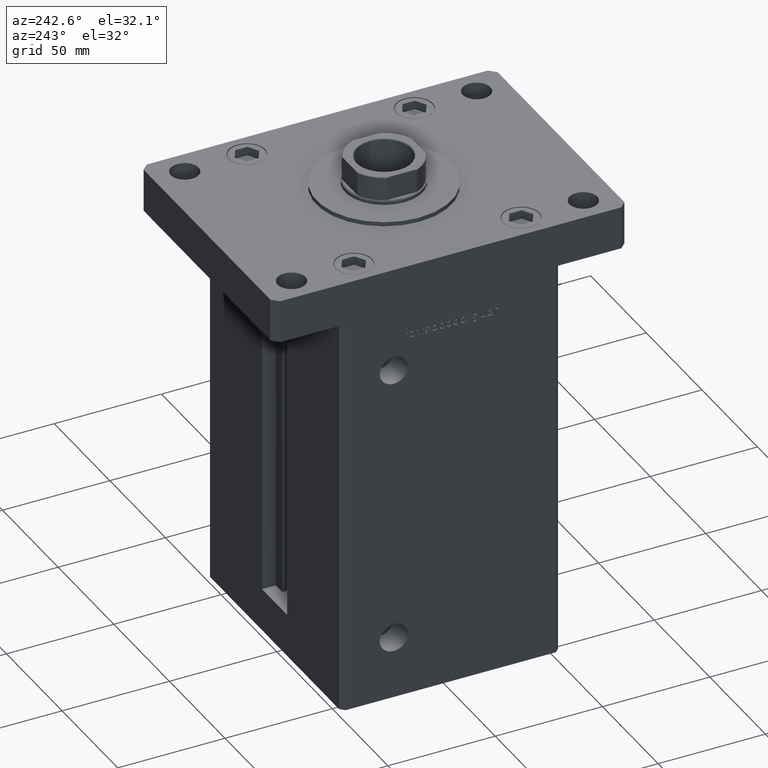
[diagram: clean part render]
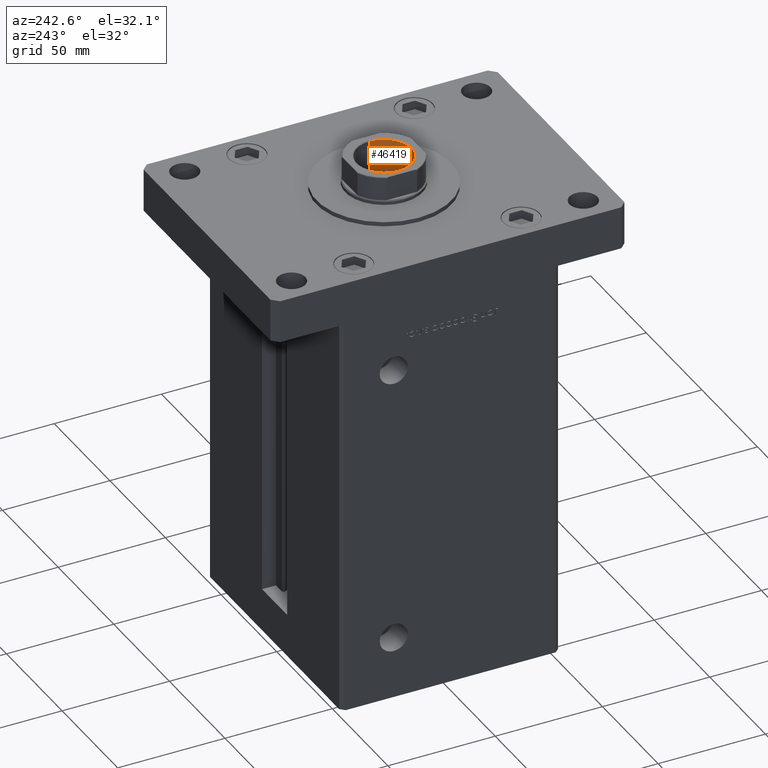
[diagram: same view with one face highlighted and labeled with its STEP entity id]
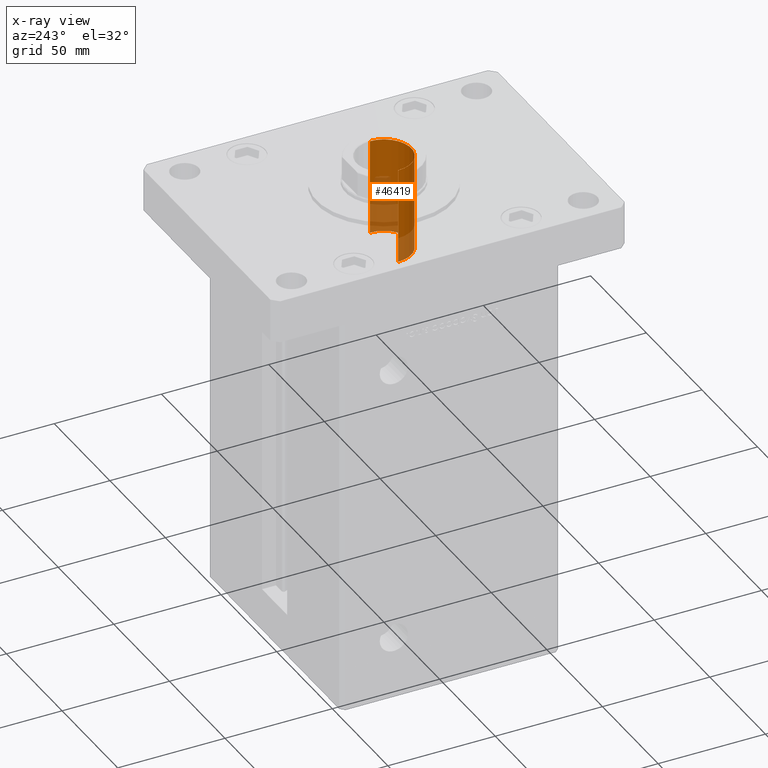
[diagram: x-ray of the same camera — body ghosted, the highlighted face saturated]
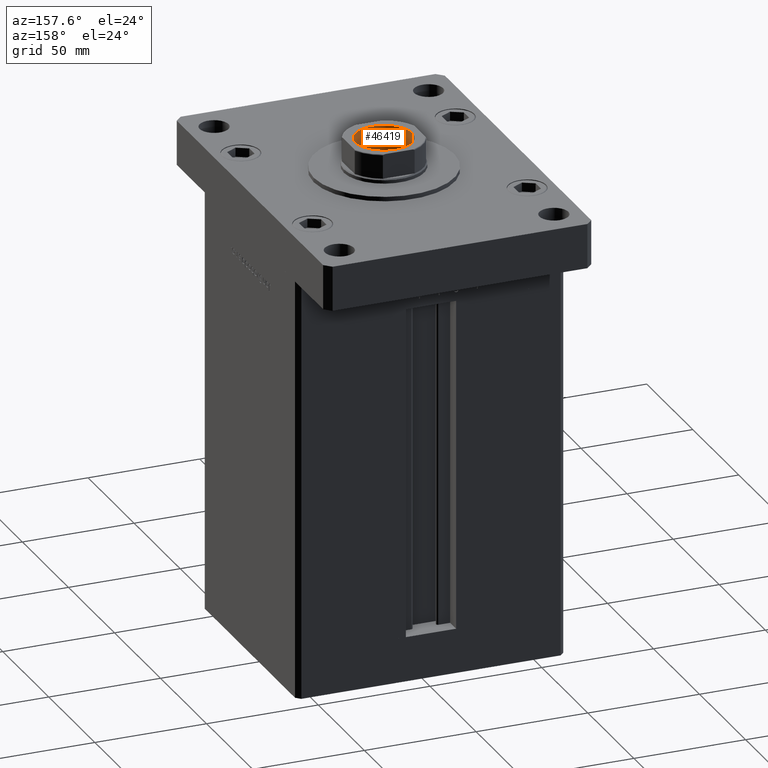
[diagram: same view with one face highlighted and labeled with its STEP entity id]
A machine part, auxiliary view. The second image highlights one B-rep face of the part: STEP entity #46419.
The next image is the same camera in x-ray: the body ghosted, the highlighted face saturated — about 37% of this face is hidden behind the body in this view.
A second angle (auxiliary view) of the same face is appended — the face is thin or edge-on in the first view.
In plain terms, the highlighted cylindrical surface (edge-blend (fillet) strip) has radius 12.75 mm, axis along (0, 0, 1).
Its self-contained STEP definition (entity closure, byte-faithful):
#569 = CARTESIAN_POINT ( 'NONE',  ( -12.74999999999999467, 1.561424668912874519E-15, 189.2500000000000000 ) ) ;
#1391 = CARTESIAN_POINT ( 'NONE',  ( -12.74999999999999112, 1.561424668912874125E-15, 144.2500000000000000 ) ) ;
#1941 = CARTESIAN_POINT ( 'NONE',  ( 0.000000000000000000, 0.000000000000000000, 144.2500000000000000 ) ) ;
#2349 = DIRECTION ( 'NONE',  ( -0.000000000000000000, -0.000000000000000000, 1.000000000000000000 ) ) ;
#2465 = ORIENTED_EDGE ( 'NONE', *, *, #8564, .T. ) ;
#2887 = DIRECTION ( 'NONE',  ( 1.000000000000000000, 0.000000000000000000, 0.000000000000000000 ) ) ;
#8564 = EDGE_CURVE ( 'NONE', #13536, #32589, #10723, .T. ) ;
#9604 = CARTESIAN_POINT ( 'NONE',  ( 12.74999999999999467, 0.000000000000000000, 188.9499999999999886 ) ) ;
#10723 = CIRCLE ( 'NONE', #48154, 12.74999999999999467 ) ;
#12975 = VECTOR ( 'NONE', #52118, 1000.000000000000000 ) ;
#13536 = VERTEX_POINT ( 'NONE', #37186 ) ;
#14759 = DIRECTION ( 'NONE',  ( 1.000000000000000000, 0.000000000000000000, 0.000000000000000000 ) ) ;
#14983 = EDGE_CURVE ( 'NONE', #43043, #32850, #46480, .T. ) ;
#15311 = LINE ( 'NONE', #48569, #12975 ) ;
#17199 = DIRECTION ( 'NONE',  ( -0.000000000000000000, -0.000000000000000000, 1.000000000000000000 ) ) ;
#23801 = CARTESIAN_POINT ( 'NONE',  ( 0.000000000000000000, 0.000000000000000000, 188.9499999999999886 ) ) ;
#24272 = LINE ( 'NONE', #569, #51284 ) ;
#30565 = DIRECTION ( 'NONE',  ( -0.000000000000000000, -0.000000000000000000, 1.000000000000000000 ) ) ;
#31321 = ORIENTED_EDGE ( 'NONE', *, *, #14983, .F. ) ;
#32589 = VERTEX_POINT ( 'NONE', #9604 ) ;
#32636 = EDGE_CURVE ( 'NONE', #32850, #32589, #15311, .T. ) ;
#32850 = VERTEX_POINT ( 'NONE', #51241 ) ;
#33691 = EDGE_CURVE ( 'NONE', #43043, #13536, #24272, .T. ) ;
#35550 = DIRECTION ( 'NONE',  ( 1.000000000000000000, 0.000000000000000000, 0.000000000000000000 ) ) ;
#37186 = CARTESIAN_POINT ( 'NONE',  ( -12.74999999999999467, 1.561424668912874519E-15, 188.9499999999999886 ) ) ;
#37884 = ORIENTED_EDGE ( 'NONE', *, *, #32636, .F. ) ;
#39697 = CARTESIAN_POINT ( 'NONE',  ( 0.000000000000000000, 0.000000000000000000, 189.2500000000000000 ) ) ;
#39872 = AXIS2_PLACEMENT_3D ( 'NONE', #39697, #2349, #2887 ) ;
#43043 = VERTEX_POINT ( 'NONE', #1391 ) ;
#43236 = CYLINDRICAL_SURFACE ( 'NONE', #39872, 12.74999999999999467 ) ;
#45785 = EDGE_LOOP ( 'NONE', ( #31321, #53028, #2465, #37884 ) ) ;
#46419 = ADVANCED_FACE ( 'NONE', ( #48150 ), #43236, .F. ) ;
#46480 = CIRCLE ( 'NONE', #47323, 12.74999999999999112 ) ;
#47323 = AXIS2_PLACEMENT_3D ( 'NONE', #1941, #30565, #14759 ) ;
#48107 = DIRECTION ( 'NONE',  ( 0.000000000000000000, 0.000000000000000000, 1.000000000000000000 ) ) ;
#48150 = FACE_OUTER_BOUND ( 'NONE', #45785, .T. ) ;
#48154 = AXIS2_PLACEMENT_3D ( 'NONE', #23801, #48107, #35550 ) ;
#48569 = CARTESIAN_POINT ( 'NONE',  ( 12.74999999999999467, 0.000000000000000000, 189.2500000000000000 ) ) ;
#51241 = CARTESIAN_POINT ( 'NONE',  ( 12.74999999999999112, 0.000000000000000000, 144.2500000000000000 ) ) ;
#51284 = VECTOR ( 'NONE', #17199, 1000.000000000000000 ) ;
#52118 = DIRECTION ( 'NONE',  ( -0.000000000000000000, -0.000000000000000000, 1.000000000000000000 ) ) ;
#53028 = ORIENTED_EDGE ( 'NONE', *, *, #33691, .T. ) ;